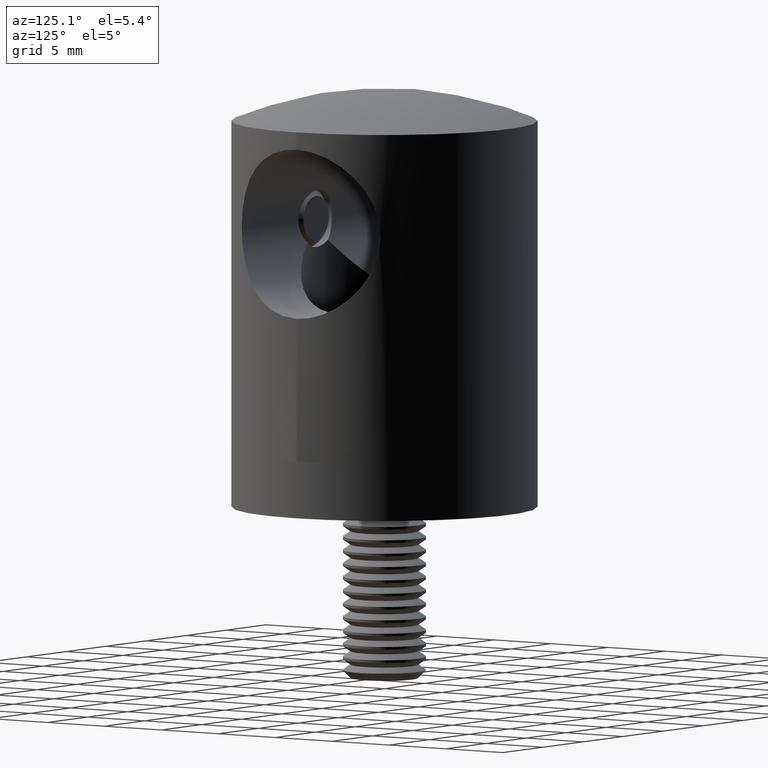
[diagram: clean part render]
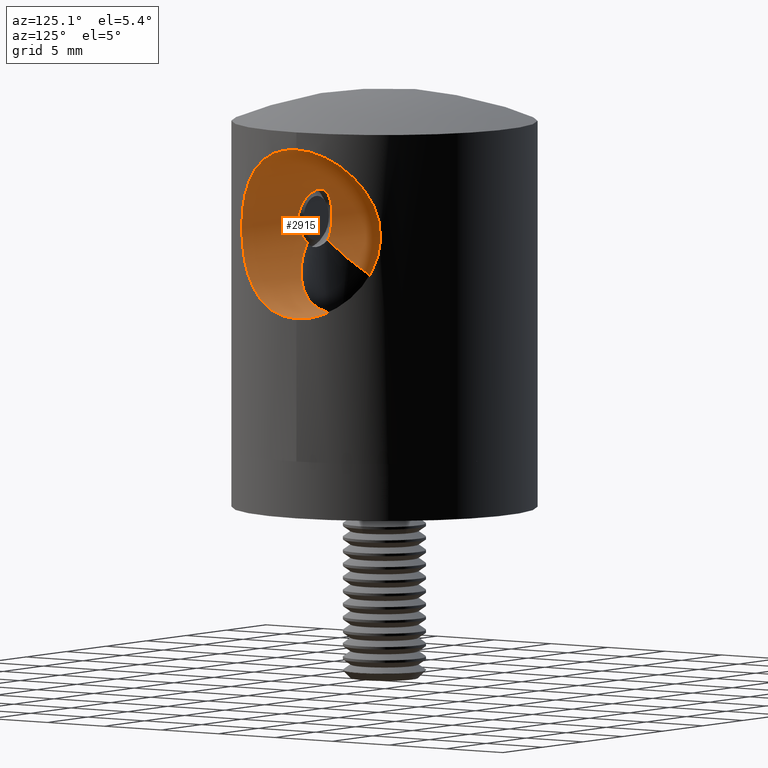
[diagram: same view with one face highlighted and labeled with its STEP entity id]
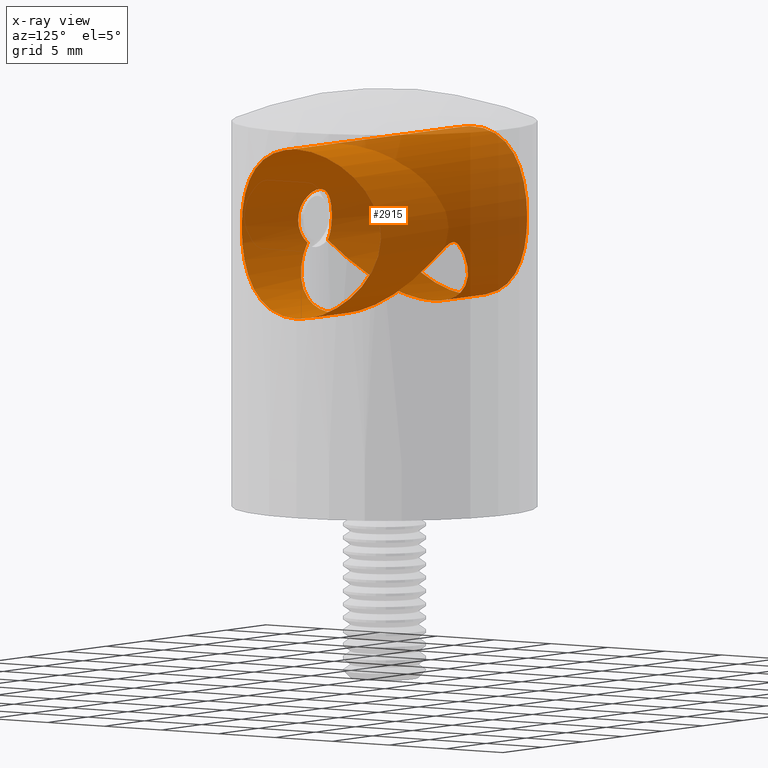
[diagram: x-ray of the same camera — body ghosted, the highlighted face saturated]
A machine part, auxiliary view. The second image highlights one B-rep face of the part: STEP entity #2915.
The next image is the same camera in x-ray: the body ghosted, the highlighted face saturated — about 39% of this face is hidden behind the body in this view.
In plain terms, the highlighted cylindrical surface (bore or boss wall) has radius 6.1 mm, axis along (1, 0, 0).
Its self-contained STEP definition (entity closure, byte-faithful):
#45 = CARTESIAN_POINT ( 'NONE',  ( 9.648512081601326800, 5.288360497444990900, 13.33447340568118200 ) ) ;
#120 = CARTESIAN_POINT ( 'NONE',  ( 9.882311817479491700, -4.833099761158375300, 12.67314814702374700 ) ) ;
#193 = CARTESIAN_POINT ( 'NONE',  ( 9.541437754094053100, -5.476577152540515100, 19.11591475201605700 ) ) ;
#271 = FACE_OUTER_BOUND ( 'NONE', #16092, .T. ) ;
#419 = CARTESIAN_POINT ( 'NONE',  ( 11.00000000000000000, -3.252606517456513300E-016, 10.29999999999999700 ) ) ;
#593 = CARTESIAN_POINT ( 'NONE',  ( -1.974343393290134400, 5.668232699227719900, 14.14100178713926900 ) ) ;
#801 = CARTESIAN_POINT ( 'NONE',  ( -1.332703421794332800, 5.852720188143624800, 14.67597872737485600 ) ) ;
#873 = CARTESIAN_POINT ( 'NONE',  ( -0.9904083631493659800, 5.920263785117187500, 14.92451375343655900 ) ) ;
#964 = CARTESIAN_POINT ( 'NONE',  ( 2.025586993270402900, -6.074695222667565500, 16.96475893698508800 ) ) ;
#999 = CARTESIAN_POINT ( 'NONE',  ( -9.404246883826671100, 5.706848822141821200, 18.56371187619917200 ) ) ;
#1094 = CARTESIAN_POINT ( 'NONE',  ( 5.605361300588310900, -2.179277337316793100, 10.68777264113116800 ) ) ;
#1148 = CARTESIAN_POINT ( 'NONE',  ( -10.56075521959791700, 3.096678220883588600, 21.67043277127627500 ) ) ;
#1170 = CARTESIAN_POINT ( 'NONE',  ( 4.796370260078870000, 3.622636291200091600, 11.47941165405563300 ) ) ;
#1222 = CARTESIAN_POINT ( 'NONE',  ( -9.882311817479486400, 4.833099761158372600, 12.67314814702374400 ) ) ;
#1247 = CARTESIAN_POINT ( 'NONE',  ( 5.385464049383036100, 2.652474965956620200, 10.90336773577465100 ) ) ;
#1266 = CARTESIAN_POINT ( 'NONE',  ( -2.101105937947259900, -6.100380710190158600, 16.31358517797544400 ) ) ;
#1316 = CARTESIAN_POINT ( 'NONE',  ( 10.97695157601235900, -0.8154917404544900200, 10.34128971045530300 ) ) ;
#1391 = CARTESIAN_POINT ( 'NONE',  ( 10.99999999999999800, -0.4119544153468471200, 10.29999999999999500 ) ) ;
#1442 = CARTESIAN_POINT ( 'NONE',  ( -9.154733802318572700, -6.098430320488778200, 16.82884321834455600 ) ) ;
#1591 = CARTESIAN_POINT ( 'NONE',  ( -10.56848592839725500, -3.070138311554853100, 21.68581601544170900 ) ) ;
#1614 = CARTESIAN_POINT ( 'NONE',  ( 10.22984273932647900, -4.054541376369454200, 20.97407856064159400 ) ) ;
#1689 = CARTESIAN_POINT ( 'NONE',  ( 9.205781148332759400, -6.021279925512389200, 17.39743835238008900 ) ) ;
#1767 = CARTESIAN_POINT ( 'NONE',  ( 9.875328383823170200, 4.851642139667733400, 12.68169681171467100 ) ) ;
#1844 = CARTESIAN_POINT ( 'NONE',  ( 9.362046769079290300, -5.775541901457285300, 18.37322836746236700 ) ) ;
#1915 = CARTESIAN_POINT ( 'NONE',  ( 9.655843362379474800, 5.275096090437347000, 19.48856493924066800 ) ) ;
#2284 = CARTESIAN_POINT ( 'NONE',  ( 10.34725143670187500, 3.748763762359424300, 11.57160730895325100 ) ) ;
#2307 = CARTESIAN_POINT ( 'NONE',  ( -5.058933925122087100, -3.248349520662636300, 11.22299575467066600 ) ) ;
#2452 = CARTESIAN_POINT ( 'NONE',  ( -4.389148418959240200, -4.106772419858628200, 11.87542505124078000 ) ) ;
#2527 = CARTESIAN_POINT ( 'NONE',  ( 1.488808073474398000, 5.822726451356348100, 14.56400330598997400 ) ) ;
#2545 = CARTESIAN_POINT ( 'NONE',  ( 2.098796381142570500, -6.099585656866871400, 16.53088729750295400 ) ) ;
#2601 = CARTESIAN_POINT ( 'NONE',  ( 6.002171018118881200, -0.1365986633456808300, 10.29786457832679500 ) ) ;
#2684 = EDGE_LOOP ( 'NONE', ( #4123 ) ) ;
#2728 = CARTESIAN_POINT ( 'NONE',  ( -9.647514933004703900, 5.290201444760914900, 19.46247388205959400 ) ) ;
#2800 = CARTESIAN_POINT ( 'NONE',  ( -11.00000000000000000, -4.065758146820641600E-016, 10.29999999999999900 ) ) ;
#2910 = CARTESIAN_POINT ( 'NONE',  ( -1.612631634144330300, -5.940142666188634700, 14.98607845750716500 ) ) ;
#2915 = ADVANCED_FACE ( 'NONE', ( #7843, #271, #18363 ), #11340, .F. ) ;
#2986 = CARTESIAN_POINT ( 'NONE',  ( -2.093736081883821800, -6.097828132484486300, 16.20432126434827000 ) ) ;
#3058 = CARTESIAN_POINT ( 'NONE',  ( -2.061975679411623300, -6.086996045277346400, 15.98735336462846100 ) ) ;
#3089 = CARTESIAN_POINT ( 'NONE',  ( -9.996537732736378200, -4.599883052709786000, 12.37464005127819400 ) ) ;
#3100 = AXIS2_PLACEMENT_3D ( 'NONE', #11255, #18071, #9223 ) ;
#3164 = CARTESIAN_POINT ( 'NONE',  ( -9.648512081601317900, -5.288360497444989200, 13.33447340568118400 ) ) ;
#3317 = CARTESIAN_POINT ( 'NONE',  ( -10.88660539605092800, -1.587461163400290900, 22.29327081037906300 ) ) ;
#3345 = CARTESIAN_POINT ( 'NONE',  ( 10.90835395832875700, -1.431035666601241800, 22.33324243480163700 ) ) ;
#3391 = CARTESIAN_POINT ( 'NONE',  ( -10.88034175087272000, 1.629824696895270100, 22.28170272155429300 ) ) ;
#3419 = CARTESIAN_POINT ( 'NONE',  ( 9.994595874194324400, -4.596398108278324700, 20.41514637220333500 ) ) ;
#3491 = CARTESIAN_POINT ( 'NONE',  ( 9.823416292433384100, -4.951332716768896500, 12.83170122485886600 ) ) ;
#3568 = CARTESIAN_POINT ( 'NONE',  ( 10.81560744150687200, -2.015142880694794400, 22.16107234963544000 ) ) ;
#3646 = CARTESIAN_POINT ( 'NONE',  ( 10.65712405073123900, -2.750588877777293100, 21.85910216543438600 ) ) ;
#3652 = CARTESIAN_POINT ( 'NONE',  ( 11.00000000000000000, 0.0000000000000000000, 10.29999999999999900 ) ) ;
#3804 = CARTESIAN_POINT ( 'NONE',  ( 11.00000000000000000, 0.4119544153468421300, 10.30000000000000100 ) ) ;
#3978 = CARTESIAN_POINT ( 'NONE',  ( 3.553350730415342900, 4.846567782642080300, 12.68099178015578100 ) ) ;
#4115 = CARTESIAN_POINT ( 'NONE',  ( -5.941325751448900400, 0.8632317753215782400, 10.35770454943839500 ) ) ;
#4123 = ORIENTED_EDGE ( 'NONE', *, *, #21187, .F. ) ;
#4190 = CARTESIAN_POINT ( 'NONE',  ( -4.097552072176873700, 4.396346292867046500, 12.15799220229235900 ) ) ;
#4207 = CARTESIAN_POINT ( 'NONE',  ( 1.841419818001115900, -6.014671674399156000, 15.36712081795136300 ) ) ;
#4264 = CARTESIAN_POINT ( 'NONE',  ( -0.2229703841922922900, 5.999711123325627500, 15.29842435081656600 ) ) ;
#4282 = CARTESIAN_POINT ( 'NONE',  ( 2.093510338979991400, -6.097750379977491700, 16.20196553109769900 ) ) ;
#4335 = CARTESIAN_POINT ( 'NONE',  ( 5.933619609980066700, -0.9863462721743108100, 10.36528464065996500 ) ) ;
#4353 = CARTESIAN_POINT ( 'NONE',  ( 2.036667523308055600, -6.078409108426343200, 15.87655080622310200 ) ) ;
#4489 = CARTESIAN_POINT ( 'NONE',  ( 5.898167603611800500, 1.120429336238712500, 10.40014097301561200 ) ) ;
#4537 = CARTESIAN_POINT ( 'NONE',  ( -10.05928916644563000, 4.453430819430038500, 12.22689457929945800 ) ) ;
#4575 = CARTESIAN_POINT ( 'NONE',  ( -2.037224136285150000, -6.078595965595432000, 15.87869585989432300 ) ) ;
#4610 = CARTESIAN_POINT ( 'NONE',  ( -10.23523940358924200, 4.040947010502997600, 11.81391594917569400 ) ) ;
#4749 = CARTESIAN_POINT ( 'NONE',  ( -10.35109153156164300, 3.738197719850750100, 11.56340833636307500 ) ) ;
#4787 = CARTESIAN_POINT ( 'NONE',  ( -1.560745191584887800, -5.934707486735849400, 17.82154701282365000 ) ) ;
#4845 = CARTESIAN_POINT ( 'NONE',  ( 10.88928147642777600, -1.606873239554576800, 10.50161415780659300 ) ) ;
#4892 = CARTESIAN_POINT ( 'NONE',  ( -9.357734529854720800, -5.784913307303538600, 14.42355532554420000 ) ) ;
#5048 = CARTESIAN_POINT ( 'NONE',  ( -9.262708643723197400, -5.933349042232531900, 17.83071913368764400 ) ) ;
#5073 = CARTESIAN_POINT ( 'NONE',  ( 10.23865757073148200, 4.032357685516512200, 20.99370868653107500 ) ) ;
#5126 = CARTESIAN_POINT ( 'NONE',  ( -11.00000000000000000, -4.065758146820641600E-016, 10.29999999999999900 ) ) ;
#5155 = CARTESIAN_POINT ( 'NONE',  ( 10.00013541345771500, -4.584346395257771400, 12.37109864061816600 ) ) ;
#5228 = CARTESIAN_POINT ( 'NONE',  ( 9.364778303763213100, -5.773464504138153200, 14.39169695136982900 ) ) ;
#5306 = CARTESIAN_POINT ( 'NONE',  ( 9.262708643723195600, 5.933349042232532800, 17.83071913368764400 ) ) ;
#5379 = CARTESIAN_POINT ( 'NONE',  ( 9.411849063529519600, 5.694304542915046100, 18.59632450029122500 ) ) ;
#5685 = CARTESIAN_POINT ( 'NONE',  ( 10.88669551587767400, 1.625843207734908100, 10.50636876088165500 ) ) ;
#5712 = CARTESIAN_POINT ( 'NONE',  ( 0.7984645737163839100, 5.949732835224148500, 15.05108044348809700 ) ) ;
#5761 = CARTESIAN_POINT ( 'NONE',  ( 9.996537732736381800, 4.599883052709784300, 12.37464005127819500 ) ) ;
#5788 = CARTESIAN_POINT ( 'NONE',  ( -5.907493718958915200, 1.070115368251027600, 10.39097219733359800 ) ) ;
#5867 = CARTESIAN_POINT ( 'NONE',  ( -1.596766314802774200, -5.793581575468227400, 14.47328231479936100 ) ) ;
#5937 = CARTESIAN_POINT ( 'NONE',  ( -1.817385701289969900, 5.720573112531241100, 14.27749625758165000 ) ) ;
#6016 = CARTESIAN_POINT ( 'NONE',  ( -3.630156631122732200, -4.789113362133579500, 12.60748802911717600 ) ) ;
#6085 = CARTESIAN_POINT ( 'NONE',  ( 4.861354902096104000, -3.521632493673705800, 11.41579888962308900 ) ) ;
#6159 = CARTESIAN_POINT ( 'NONE',  ( 3.641122164734124800, -4.781310034785559700, 12.59701020878115300 ) ) ;
#6178 = CARTESIAN_POINT ( 'NONE',  ( 1.754409539363008100, -5.989502981140246300, 17.55922130206730400 ) ) ;
#6238 = CARTESIAN_POINT ( 'NONE',  ( 5.933879885055172400, 0.9127216642812178100, 10.36502605593457100 ) ) ;
#6300 = EDGE_LOOP ( 'NONE', ( #8797, #14322 ) ) ;
#6326 = CARTESIAN_POINT ( 'NONE',  ( -2.051653251407408600, -6.083500675143978900, 16.86123247293654600 ) ) ;
#6359 = CARTESIAN_POINT ( 'NONE',  ( -9.288523322039354800, 5.893058497745284900, 17.98819897613592600 ) ) ;
#6431 = CARTESIAN_POINT ( 'NONE',  ( -10.97695157601235700, 0.8154917404544902400, 10.34128971045530000 ) ) ;
#6500 = CARTESIAN_POINT ( 'NONE',  ( -10.00013541345771500, 4.584346395257770500, 12.37109864061816600 ) ) ;
#6541 = CARTESIAN_POINT ( 'NONE',  ( -0.8545190373027407000, -5.786855726936490600, 18.33063683222330600 ) ) ;
#6550 = VERTEX_POINT ( 'NONE', #17566 ) ;
#6573 = CARTESIAN_POINT ( 'NONE',  ( -10.99905965626380700, 0.4319682143558776800, 22.49830428873474400 ) ) ;
#6617 = CARTESIAN_POINT ( 'NONE',  ( -2.098627926073695500, -6.099527671785688600, 16.53369559396774200 ) ) ;
#6649 = CARTESIAN_POINT ( 'NONE',  ( -10.65712405073123900, 2.750588877777294900, 21.85910216543440000 ) ) ;
#6797 = CARTESIAN_POINT ( 'NONE',  ( -9.369915670549833200, -5.762779879413706400, 18.41008764505288700 ) ) ;
#6824 = CARTESIAN_POINT ( 'NONE',  ( 10.88034175087272500, -1.629824696895275900, 22.28170272155429300 ) ) ;
#6873 = CARTESIAN_POINT ( 'NONE',  ( -9.182846360408930800, -6.056809541581206000, 17.23151101186772000 ) ) ;
#6905 = CARTESIAN_POINT ( 'NONE',  ( 9.295422111209905600, 5.882183215968437300, 18.02788356252803900 ) ) ;
#6979 = CARTESIAN_POINT ( 'NONE',  ( 10.56075521959791500, -3.096678220883586800, 21.67043277127626800 ) ) ;
#7055 = CARTESIAN_POINT ( 'NONE',  ( 9.548936329887283100, 5.463500988949929700, 19.14152131049772300 ) ) ;
#7133 = CARTESIAN_POINT ( 'NONE',  ( 10.77884143829793800, -2.202631448935040000, 22.09190641235104000 ) ) ;
#7284 = CARTESIAN_POINT ( 'NONE',  ( 10.23201466657478100, 4.049143934664146900, 11.82103939613443400 ) ) ;
#7466 = CARTESIAN_POINT ( 'NONE',  ( 4.077951799122588200, 4.414275683407217900, 12.17691918122648100 ) ) ;
#7617 = CARTESIAN_POINT ( 'NONE',  ( -3.569507124002474700, 4.834915987140045800, 12.66555515773551500 ) ) ;
#7695 = CARTESIAN_POINT ( 'NONE',  ( -0.8138401773423792300, 5.947639583694001300, 15.04176105867922800 ) ) ;
#7785 = CARTESIAN_POINT ( 'NONE',  ( 2.088860761884516300, -6.096149780478172400, 16.64231454198938600 ) ) ;
#7839 = CARTESIAN_POINT ( 'NONE',  ( 4.164476997352461600, -4.333108307644922200, 12.09328090130381900 ) ) ;
#7843 = FACE_BOUND ( 'NONE', #6300, .T. ) ;
#7965 = CARTESIAN_POINT ( 'NONE',  ( -9.547459403721239500, 5.466075739822138700, 13.66354435040355300 ) ) ;
#7987 = CARTESIAN_POINT ( 'NONE',  ( 5.993465899922820300, -0.3514920590932021900, 10.30642794072177400 ) ) ;
#8039 = CARTESIAN_POINT ( 'NONE',  ( -10.99999999999999800, 0.4119544153468474600, 10.29999999999999700 ) ) ;
#8058 = CARTESIAN_POINT ( 'NONE',  ( 1.264911064067350700, -5.865151319446074000, 14.72369453857598600 ) ) ;
#8078 = CARTESIAN_POINT ( 'NONE',  ( -0.4395679350782009100, -5.740271456021377000, 18.46502818225347700 ) ) ;
#8130 = CARTESIAN_POINT ( 'NONE',  ( 5.070355812523002800, -3.213434119294578600, 11.21174429214072000 ) ) ;
#8254 = CARTESIAN_POINT ( 'NONE',  ( -9.364778303763213100, 5.773464504138154000, 14.39169695136983200 ) ) ;
#8298 = CARTESIAN_POINT ( 'NONE',  ( -1.753379723450522400, -5.989202559992711400, 17.56074971939405000 ) ) ;
#8326 = CARTESIAN_POINT ( 'NONE',  ( -10.23865757073147800, -4.032357685516514000, 20.99370868653107500 ) ) ;
#8350 = CARTESIAN_POINT ( 'NONE',  ( 10.56516037208888100, -3.081656113116340900, 11.12078256614181400 ) ) ;
#8396 = CARTESIAN_POINT ( 'NONE',  ( -9.295422111209902000, -5.882183215968435500, 18.02788356252802900 ) ) ;
#8472 = CARTESIAN_POINT ( 'NONE',  ( -10.91341900764949100, -1.391812421171590800, 22.34254261676389700 ) ) ;
#8571 = CARTESIAN_POINT ( 'NONE',  ( 10.99905965626380100, -0.4319682143558784500, 22.49830428873475100 ) ) ;
#8591 = B_SPLINE_CURVE_WITH_KNOTS ( 'NONE', 3,
 ( #12928, #11319, #19776, #4207, #16325, #4353, #18132, #4282, #11178, #2545, #7785, #12998, #964, #14813, #16467, #16544, #6178, #18277, #15180, #11471, #22080, #16912, #13441, #13510, #8078, #6541, #18634, #13368, #4787, #8298, #10030, #20214, #21934, #20368, #6326, #11616, #6617, #1266, #2986, #3058, #4575, #15253, #2910, #11765 ),
 .UNSPECIFIED., .F., .F.,
 ( 4, 2, 2, 2, 2, 2, 2, 2, 2, 2, 2, 2, 2, 2, 2, 2, 2, 2, 2, 2, 2, 4 ),
 ( 0.001359203220729817300, 0.002016167456919639400, 0.002673131693109461300, 0.003001613811204376900, 0.003330095929299292800, 0.003658578047394208400, 0.003987060165489123900, 0.004315542283584039400, 0.004644024401678955800, 0.005300988637868778200, 0.005957952874058601400, 0.006614917110248424600, 0.007271881346438247900, 0.007928845582628071100, 0.008585809818817895200, 0.008914291936912802100, 0.009242774055007710700, 0.009571256173102617500, 0.009899738291197524400, 0.01022822040929243300, 0.01055670252738734000, 0.01187063099976695200 ),
 .UNSPECIFIED. ) ;
#8643 = CARTESIAN_POINT ( 'NONE',  ( 9.357734529854720800, 5.784913307303538600, 14.42355532554420200 ) ) ;
#8723 = CARTESIAN_POINT ( 'NONE',  ( 9.152699255644691300, 6.101483401673093000, 16.01703893293871100 ) ) ;
#8797 = ORIENTED_EDGE ( 'NONE', *, *, #9080, .T. ) ;
#8798 = CARTESIAN_POINT ( 'NONE',  ( 9.159751136064910400, -6.090938158330283500, 16.79016624204473700 ) ) ;
#8869 = CARTESIAN_POINT ( 'NONE',  ( 9.257007648696458100, -5.942224152987878800, 17.79307836241349600 ) ) ;
#9080 = EDGE_CURVE ( 'NONE', #6550, #11839, #20345, .T. ) ;
#9194 = CARTESIAN_POINT ( 'NONE',  ( -5.946055537342354000, -0.8300710709480136900, 10.35305359656856400 ) ) ;
#9223 = DIRECTION ( 'NONE',  ( 0.0000000000000000000, 0.0000000000000000000, -1.000000000000000000 ) ) ;
#9277 = CARTESIAN_POINT ( 'NONE',  ( -4.813579456712679900, 3.599789657321296900, 11.46263072592644700 ) ) ;
#9352 = CARTESIAN_POINT ( 'NONE',  ( -1.264911064067350700, -5.865151319446073200, 14.72369453857598400 ) ) ;
#9427 = CARTESIAN_POINT ( 'NONE',  ( -6.000536527366700800, -0.2001739052171296900, 10.29947226822210400 ) ) ;
#9501 = CARTESIAN_POINT ( 'NONE',  ( -2.800319949547912300, -5.316494211003008500, 13.39285986529588800 ) ) ;
#9622 = CARTESIAN_POINT ( 'NONE',  ( -9.186070511604013300, 6.051171545997140900, 17.19691923427018000 ) ) ;
#9692 = CARTESIAN_POINT ( 'NONE',  ( -9.287385638928908400, 5.895229317790464700, 14.78182133336428600 ) ) ;
#9715 = CARTESIAN_POINT ( 'NONE',  ( 5.547929425930242100, 2.293321947987471400, 10.74409475538808500 ) ) ;
#9767 = CARTESIAN_POINT ( 'NONE',  ( -9.159751136064912200, 6.090938158330279100, 16.79016624204474800 ) ) ;
#9789 = CARTESIAN_POINT ( 'NONE',  ( 2.807320842822787800, -5.312840968243786900, 13.38633653989425600 ) ) ;
#9862 = CARTESIAN_POINT ( 'NONE',  ( 5.996895272633159000, 0.2862921840430671100, 10.30305382305022400 ) ) ;
#10030 = CARTESIAN_POINT ( 'NONE',  ( -1.810806009050234700, -6.006389234583454400, 17.46905416753431000 ) ) ;
#10054 = ORIENTED_EDGE ( 'NONE', *, *, #20887, .F. ) ;
#10063 = CARTESIAN_POINT ( 'NONE',  ( -11.00042874672051100, -0.1790107633385605900, 22.50077315433565400 ) ) ;
#10145 = CARTESIAN_POINT ( 'NONE',  ( -10.55980625606059700, -3.085983629272201200, 11.13443178477246500 ) ) ;
#10223 = CARTESIAN_POINT ( 'NONE',  ( -9.655843362379471300, -5.275096090437347800, 19.48856493924067100 ) ) ;
#10324 = CARTESIAN_POINT ( 'NONE',  ( 10.91341900764949600, 1.391812421171593000, 22.34254261676390000 ) ) ;
#10378 = EDGE_CURVE ( 'NONE', #11839, #6550, #8591, .T. ) ;
#10399 = CARTESIAN_POINT ( 'NONE',  ( 9.542046598227907200, 5.475560630793905800, 13.68158294172838300 ) ) ;
#10467 = CARTESIAN_POINT ( 'NONE',  ( 10.97324043956128000, 0.7936138331961980500, 22.45163438274044800 ) ) ;
#10536 = CARTESIAN_POINT ( 'NONE',  ( 9.547459403721244800, -5.466075739822142200, 13.66354435040356000 ) ) ;
#10694 = CARTESIAN_POINT ( 'NONE',  ( 10.55980625606059000, 3.085983629272201600, 11.13443178477246100 ) ) ;
#10776 = CARTESIAN_POINT ( 'NONE',  ( -10.99999999999999800, 0.0000000000000000000, 10.29999999999999900 ) ) ;
#10940 = CARTESIAN_POINT ( 'NONE',  ( 4.330611818442055700, 4.168268543179412000, 11.93220180396378200 ) ) ;
#11016 = CARTESIAN_POINT ( 'NONE',  ( -3.361448588209259700, -4.980719416338415900, 12.86440435271702800 ) ) ;
#11084 = CARTESIAN_POINT ( 'NONE',  ( -5.763405681466280400, 1.680748575675977700, 10.53257308362807300 ) ) ;
#11159 = CARTESIAN_POINT ( 'NONE',  ( 0.4164247023968396000, 5.988610602907670900, 15.23576298494401200 ) ) ;
#11178 = CARTESIAN_POINT ( 'NONE',  ( 2.100993732706290600, -6.100342088836493200, 16.31110079149023000 ) ) ;
#11230 = CARTESIAN_POINT ( 'NONE',  ( -5.827112224364638500, -1.444885380224743700, 10.46997685911353300 ) ) ;
#11255 = CARTESIAN_POINT ( 'NONE',  ( -11.00000000000000000, 0.0000000000000000000, 16.39999999999999900 ) ) ;
#11319 = CARTESIAN_POINT ( 'NONE',  ( 1.439601833364684900, -5.902826099658821800, 14.85551316707757700 ) ) ;
#11340 = CYLINDRICAL_SURFACE ( 'NONE', #3100, 6.099999999999999600 ) ;
#11354 = CARTESIAN_POINT ( 'NONE',  ( -9.205781148332759400, 6.021279925512387400, 17.39743835238009200 ) ) ;
#11450 = CARTESIAN_POINT ( 'NONE',  ( 4.751897198670479700, -3.667659259264588900, 11.52251748310811200 ) ) ;
#11471 = CARTESIAN_POINT ( 'NONE',  ( 1.054332110265832300, -5.820845952516644500, 18.22897082291987300 ) ) ;
#11504 = CARTESIAN_POINT ( 'NONE',  ( -10.05375444080991800, 4.465900659990700700, 20.55976037867541000 ) ) ;
#11528 = CARTESIAN_POINT ( 'NONE',  ( 5.448222991157091000, -2.542767010236418800, 10.84196997935652700 ) ) ;
#11600 = CARTESIAN_POINT ( 'NONE',  ( 5.805834339480322900, 1.528407864514953900, 10.49088503742910900 ) ) ;
#11616 = CARTESIAN_POINT ( 'NONE',  ( -2.088524507727443200, -6.096034286308173100, 16.64511596994808300 ) ) ;
#11651 = CARTESIAN_POINT ( 'NONE',  ( 1.264911064067350700, -5.865151319446074000, 14.72369453857598600 ) ) ;
#11653 = CARTESIAN_POINT ( 'NONE',  ( -10.56516037208888300, 3.081656113116340500, 11.12078256614181100 ) ) ;
#11765 = CARTESIAN_POINT ( 'NONE',  ( -1.264911064067350700, -5.865151319446073200, 14.72369453857598400 ) ) ;
#11798 = CARTESIAN_POINT ( 'NONE',  ( -9.411849063529519600, -5.694304542915048700, 18.59632450029122100 ) ) ;
#11839 = VERTEX_POINT ( 'NONE', #11651 ) ;
#11866 = CARTESIAN_POINT ( 'NONE',  ( -10.00363043224887400, -4.584473309947978400, 20.44285449540665000 ) ) ;
#11943 = CARTESIAN_POINT ( 'NONE',  ( -10.70011745089923100, -2.557856534737484600, 10.85862283480468400 ) ) ;
#11970 = CARTESIAN_POINT ( 'NONE',  ( 9.653232611197095600, -5.279764526992450700, 13.31975750584613700 ) ) ;
#12018 = CARTESIAN_POINT ( 'NONE',  ( -9.884558394909735300, -4.832955114603747000, 20.14278198770373500 ) ) ;
#12048 = CARTESIAN_POINT ( 'NONE',  ( 9.182846360408934300, 6.056809541581205100, 17.23151101186772000 ) ) ;
#12118 = CARTESIAN_POINT ( 'NONE',  ( 9.182824149353347600, -6.056814456260993600, 15.57100690659151700 ) ) ;
#12201 = CARTESIAN_POINT ( 'NONE',  ( 10.56848592839725500, 3.070138311554854400, 21.68581601544172000 ) ) ;
#12276 = CARTESIAN_POINT ( 'NONE',  ( 10.88660539605092300, 1.587461163400291300, 22.29327081037905200 ) ) ;
#12465 = B_SPLINE_CURVE_WITH_KNOTS ( 'NONE', 3,
 ( #2800, #8039, #6431, #16796, #15134, #20027, #11653, #4749, #4610, #4537, #6500, #1222, #20173, #18595, #7965, #8254, #9692, #16720, #16649, #20101, #9767, #9622, #11354, #21824, #6359, #21892, #999, #13106, #2728, #14842, #21756, #16574, #11504, #18457, #13324, #1148, #6649, #20401, #13776, #3391, #17247, #18813, #6573, #10063, #13698, #22107, #18665, #8472, #3317, #15508, #16943, #20542, #1591, #15430, #8326, #11866, #12018, #10223, #22040, #11798, #6797, #8396, #5048, #6873, #1442, #13542, #15285, #17010, #4892, #18963, #3164, #20321, #3089, #18740, #22261, #20470, #10145, #17088, #11943, #17168, #22180, #13470, #15208, #5126 ),
 .UNSPECIFIED., .T., .F.,
 ( 4, 2, 2, 2, 2, 2, 2, 2, 2, 2, 2, 2, 2, 2, 2, 2, 2, 2, 2, 2, 2, 2, 2, 2, 2, 2, 2, 2, 2, 2, 2, 2, 2, 2, 2, 2, 2, 2, 2, 2, 2, 4 ),
 ( 0.0000000000000000000, 0.001216736210685104500, 0.002433472421370208600, 0.003650208632055312900, 0.004866944842740417200, 0.005475312948082970200, 0.006083681053425524100, 0.007300417264110637000, 0.008517153474795749100, 0.009733889685480860400, 0.01034225779082341600, 0.01095062589616597300, 0.01155899400150852900, 0.01216736210685108600, 0.01338409831753618700, 0.01399246642287873400, 0.01460083452822128100, 0.01581757073890636600, 0.01703430694959145000, 0.01764267505493399100, 0.01825104316027653000, 0.01946777937096160600, 0.02007614747630414800, 0.02068451558164668600, 0.02129288368698922800, 0.02190125179233176300, 0.02311798800301683900, 0.02433472421370190900, 0.02555146042438697800, 0.02676819663507204800, 0.02737656474041458300, 0.02798493284575711800, 0.02920166905644219400, 0.03041840526712729200, 0.03163514147781237900, 0.03285187768849747600, 0.03406861389918256600, 0.03528535010986765700, 0.03589371821521019500, 0.03650208632055274000, 0.03771882253123783100, 0.03893555874192292100 ),
 .UNSPECIFIED. ) ;
#12507 = CARTESIAN_POINT ( 'NONE',  ( 10.82153467679176400, 2.008721309774863500, 10.62652596293656300 ) ) ;
#12683 = CARTESIAN_POINT ( 'NONE',  ( -5.999423518707703600, 0.2311398965319164700, 10.30056703071898400 ) ) ;
#12756 = CARTESIAN_POINT ( 'NONE',  ( -5.987287593646464700, 0.4437432294940630300, 10.31250500155602100 ) ) ;
#12911 = CARTESIAN_POINT ( 'NONE',  ( -5.409869706024877300, 2.623633317661039100, 10.87957111080283200 ) ) ;
#12928 = CARTESIAN_POINT ( 'NONE',  ( 1.264911064067350700, -5.865151319446074000, 14.72369453857598600 ) ) ;
#12980 = CARTESIAN_POINT ( 'NONE',  ( -5.589688092112501400, -2.217622435427866600, 10.70315258963418400 ) ) ;
#12998 = CARTESIAN_POINT ( 'NONE',  ( 2.052201600842742800, -6.083685911845287300, 16.85882917224035900 ) ) ;
#13056 = CARTESIAN_POINT ( 'NONE',  ( 4.410100469293023900, -4.084117966703208100, 11.85508844831131900 ) ) ;
#13106 = CARTESIAN_POINT ( 'NONE',  ( -9.541437754094056700, 5.476577152540516000, 19.11591475201606400 ) ) ;
#13201 = CARTESIAN_POINT ( 'NONE',  ( 5.850397280123098100, -1.393619994045684600, 10.44713393191579700 ) ) ;
#13324 = CARTESIAN_POINT ( 'NONE',  ( -10.34600107115468500, 3.752229823401759500, 21.22572781584416600 ) ) ;
#13351 = CARTESIAN_POINT ( 'NONE',  ( 11.00000000000000000, -3.252606517456513300E-016, 10.29999999999999700 ) ) ;
#13368 = CARTESIAN_POINT ( 'NONE',  ( -1.403573685132121200, -5.894115759291668000, 17.97694270018069700 ) ) ;
#13441 = CARTESIAN_POINT ( 'NONE',  ( 0.2203795295326191900, -5.727184751572131000, 18.49984638675085700 ) ) ;
#13470 = CARTESIAN_POINT ( 'NONE',  ( -10.97668327814536400, -0.8221493798894822200, 10.34175555824984000 ) ) ;
#13510 = CARTESIAN_POINT ( 'NONE',  ( -0.2174421764079095300, -5.727072475679378300, 18.50015258610098100 ) ) ;
#13542 = CARTESIAN_POINT ( 'NONE',  ( -9.152699255644689600, -6.101483401673090300, 16.01703893293871100 ) ) ;
#13698 = CARTESIAN_POINT ( 'NONE',  ( -10.99515712557069400, -0.3851602843953686500, 22.49128501828072800 ) ) ;
#13729 = CARTESIAN_POINT ( 'NONE',  ( 10.34600107115468700, -3.752229823401762600, 21.22572781584417700 ) ) ;
#13776 = CARTESIAN_POINT ( 'NONE',  ( -10.81560744150687700, 2.015142880694789500, 22.16107234963545000 ) ) ;
#13799 = CARTESIAN_POINT ( 'NONE',  ( 9.404246883826667500, -5.706848822141821200, 18.56371187619916800 ) ) ;
#13871 = CARTESIAN_POINT ( 'NONE',  ( 11.00042874672050700, 0.1790107633385608100, 22.50077315433566100 ) ) ;
#13948 = CARTESIAN_POINT ( 'NONE',  ( 9.876850331807260000, -4.844238823729229500, 20.11236126726327800 ) ) ;
#14019 = CARTESIAN_POINT ( 'NONE',  ( 10.99515712557069600, 0.3851602843953721400, 22.49128501828072000 ) ) ;
#14141 = B_SPLINE_CURVE_WITH_KNOTS ( 'NONE', 3,
 ( #13351, #1391, #1316, #4845, #16967, #18692, #8350, #20426, #17195, #22287, #5155, #120, #3491, #11970, #10536, #5228, #15533, #12118, #20870, #20952, #8798, #20725, #1689, #8869, #15611, #1844, #13799, #193, #15756, #22355, #13948, #3419, #17349, #1614, #13729, #6979, #3646, #7133, #3568, #6824, #3345, #17420, #8571, #13871, #14019, #10467, #15459, #10324, #12276, #20793, #19206, #17272, #12201, #19066, #5073, #15679, #18911, #1915, #7055, #5379, #20650, #6905, #5306, #12048, #18992, #8723, #19131, #17499, #8643, #10399, #45, #1767, #5761, #7284, #2284, #17646, #10694, #15834, #21177, #12507, #5685, #15977, #3804, #419 ),
 .UNSPECIFIED., .T., .F.,
 ( 4, 2, 2, 2, 2, 2, 2, 2, 2, 2, 2, 2, 2, 2, 2, 2, 2, 2, 2, 2, 2, 2, 2, 2, 2, 2, 2, 2, 2, 2, 2, 2, 2, 2, 2, 2, 2, 2, 2, 2, 2, 4 ),
 ( 0.0000000000000000000, 0.001216736210685103400, 0.002433472421370206800, 0.003650208632055310300, 0.004866944842740413700, 0.005475312948082967600, 0.006083681053425521500, 0.007300417264110631800, 0.008517153474795743900, 0.009733889685480853400, 0.01034225779082340900, 0.01095062589616596600, 0.01155899400150852000, 0.01216736210685107800, 0.01338409831753618000, 0.01399246642287872400, 0.01460083452822126900, 0.01581757073890635600, 0.01703430694959143900, 0.01764267505493398100, 0.01825104316027652300, 0.01946777937096160300, 0.02007614747630414400, 0.02068451558164668600, 0.02129288368698922100, 0.02190125179233175900, 0.02311798800301683900, 0.02433472421370191600, 0.02555146042438699600, 0.02676819663507206900, 0.02737656474041461100, 0.02798493284575714900, 0.02920166905644223600, 0.03041840526712732300, 0.03163514147781240600, 0.03285187768849749000, 0.03406861389918258000, 0.03528535010986766400, 0.03589371821521020900, 0.03650208632055274700, 0.03771882253123783800, 0.03893555874192292800 ),
 .UNSPECIFIED. ) ;
#14322 = ORIENTED_EDGE ( 'NONE', *, *, #10378, .T. ) ;
#14353 = CARTESIAN_POINT ( 'NONE',  ( 2.411922243852668000, 5.503524362304248500, 13.75284396350251400 ) ) ;
#14508 = CARTESIAN_POINT ( 'NONE',  ( -4.349707622789691400, 4.148382378625306900, 11.91368474511275900 ) ) ;
#14578 = CARTESIAN_POINT ( 'NONE',  ( -2.727811131185996300, 5.354134445416146800, 13.46036226895771100 ) ) ;
#14654 = CARTESIAN_POINT ( 'NONE',  ( -0.4324952049777459100, 5.987461928851964800, 15.22973110363804000 ) ) ;
#14728 = CARTESIAN_POINT ( 'NONE',  ( 5.621077130031295600, 2.108131344790408000, 10.67231651392111200 ) ) ;
#14797 = CARTESIAN_POINT ( 'NONE',  ( 1.599738756847426400, -5.792940522130503900, 14.47103936152139300 ) ) ;
#14813 = CARTESIAN_POINT ( 'NONE',  ( 1.955982677049211200, -6.051841671252686800, 17.17206676608577700 ) ) ;
#14842 = CARTESIAN_POINT ( 'NONE',  ( -9.818003290387908400, 4.962056561256334300, 19.95341231550813500 ) ) ;
#14867 = CARTESIAN_POINT ( 'NONE',  ( 1.913646664022783600, -5.695917087882373100, 14.19681547464132100 ) ) ;
#15134 = CARTESIAN_POINT ( 'NONE',  ( -10.82349510489187400, 1.998464203924864100, 10.62285073282916600 ) ) ;
#15180 = CARTESIAN_POINT ( 'NONE',  ( 1.404888031916984700, -5.894433118325744100, 17.97576650795928500 ) ) ;
#15208 = CARTESIAN_POINT ( 'NONE',  ( -11.00000000000000000, -0.4119544153468410200, 10.30000000000000100 ) ) ;
#15253 = CARTESIAN_POINT ( 'NONE',  ( -1.873666351667014000, -6.024564158610444600, 15.35500363163642100 ) ) ;
#15285 = CARTESIAN_POINT ( 'NONE',  ( -9.179891148193682700, -6.061232615172923700, 15.60271832034517000 ) ) ;
#15430 = CARTESIAN_POINT ( 'NONE',  ( -10.35569616419129300, -3.725345759223079000, 21.24638000732666800 ) ) ;
#15459 = CARTESIAN_POINT ( 'NONE',  ( 10.95673552425202500, 0.9948883876327665500, 22.42172331346568700 ) ) ;
#15508 = CARTESIAN_POINT ( 'NONE',  ( -10.82333026450579500, -1.973254160026633800, 22.17554688403684400 ) ) ;
#15533 = CARTESIAN_POINT ( 'NONE',  ( 9.287385638928912000, -5.895229317790466400, 14.78182133336428600 ) ) ;
#15611 = CARTESIAN_POINT ( 'NONE',  ( 9.288523322039353000, -5.893058497745282200, 17.98819897613592300 ) ) ;
#15679 = CARTESIAN_POINT ( 'NONE',  ( 10.00363043224886900, 4.584473309947980200, 20.44285449540664600 ) ) ;
#15756 = CARTESIAN_POINT ( 'NONE',  ( 9.647514933004712700, -5.290201444760914900, 19.46247388205958400 ) ) ;
#15834 = CARTESIAN_POINT ( 'NONE',  ( 10.65567692228154900, 2.736668129976453000, 10.94471346896226500 ) ) ;
#15977 = CARTESIAN_POINT ( 'NONE',  ( 10.97668327814536400, 0.8221493798894867800, 10.34175555824983800 ) ) ;
#16082 = CARTESIAN_POINT ( 'NONE',  ( 2.708429892200995500, 5.364043863546903000, 13.47837441290136200 ) ) ;
#16092 = EDGE_LOOP ( 'NONE', ( #10054 ) ) ;
#16160 = CARTESIAN_POINT ( 'NONE',  ( -5.428537054597947900, -2.583712931809057300, 10.86126593429962600 ) ) ;
#16229 = CARTESIAN_POINT ( 'NONE',  ( -3.295515760246567400, 5.024667660749353000, 12.92711351346192900 ) ) ;
#16304 = CARTESIAN_POINT ( 'NONE',  ( -2.434350739322355600, 5.493770248822911200, 13.73237411049495500 ) ) ;
#16325 = CARTESIAN_POINT ( 'NONE',  ( 1.938328334360958700, -6.045931482195009600, 15.56277965620396000 ) ) ;
#16380 = CARTESIAN_POINT ( 'NONE',  ( 0.9773194002105434200, 5.922416735734996600, 14.93329048369447600 ) ) ;
#16451 = CARTESIAN_POINT ( 'NONE',  ( 5.009953077376302100, 3.323587466433379300, 11.27086011848898100 ) ) ;
#16467 = CARTESIAN_POINT ( 'NONE',  ( 1.912532000604388200, -6.037837701241852700, 17.27412501683415900 ) ) ;
#16544 = CARTESIAN_POINT ( 'NONE',  ( 1.811792167402788100, -6.006687632219919400, 17.46737169745549800 ) ) ;
#16574 = CARTESIAN_POINT ( 'NONE',  ( -9.994595874194320800, 4.596398108278324700, 20.41514637220333100 ) ) ;
#16595 = CARTESIAN_POINT ( 'NONE',  ( 5.750024841693119400, 1.725670938667254200, 10.54571646612261300 ) ) ;
#16649 = CARTESIAN_POINT ( 'NONE',  ( -9.154625459611534000, 6.098592904478553400, 15.97188860518444100 ) ) ;
#16720 = CARTESIAN_POINT ( 'NONE',  ( -9.182824149353347600, 6.056814456260995300, 15.57100690659151900 ) ) ;
#16796 = CARTESIAN_POINT ( 'NONE',  ( -10.88928147642778100, 1.606873239554576800, 10.50161415780659800 ) ) ;
#16912 = CARTESIAN_POINT ( 'NONE',  ( 0.4426080404586254500, -5.740526841056889000, 18.46432109747691900 ) ) ;
#16943 = CARTESIAN_POINT ( 'NONE',  ( -10.78664010805816500, -2.164383443384258600, 22.10666010265786600 ) ) ;
#16967 = CARTESIAN_POINT ( 'NONE',  ( 10.82349510489187100, -1.998464203924863700, 10.62285073282916200 ) ) ;
#17010 = CARTESIAN_POINT ( 'NONE',  ( -9.282739979215671500, -5.902514784919359800, 14.80798300707638200 ) ) ;
#17088 = CARTESIAN_POINT ( 'NONE',  ( -10.65567692228154900, -2.736668129976454800, 10.94471346896226500 ) ) ;
#17168 = CARTESIAN_POINT ( 'NONE',  ( -10.82153467679176400, -2.008721309774860900, 10.62652596293656000 ) ) ;
#17195 = CARTESIAN_POINT ( 'NONE',  ( 10.23523940358924000, -4.040947010502999400, 11.81391594917569400 ) ) ;
#17247 = CARTESIAN_POINT ( 'NONE',  ( -10.90835395832875500, 1.431035666601238300, 22.33324243480165100 ) ) ;
#17272 = CARTESIAN_POINT ( 'NONE',  ( 10.66475748890669100, 2.721688767266843300, 21.87398493998483300 ) ) ;
#17349 = CARTESIAN_POINT ( 'NONE',  ( 10.05375444080991800, -4.465900659990699900, 20.55976037867541700 ) ) ;
#17420 = CARTESIAN_POINT ( 'NONE',  ( 10.97560464290936000, -0.8344455402437527300, 22.45628732122498800 ) ) ;
#17499 = CARTESIAN_POINT ( 'NONE',  ( 9.282739979215673300, 5.902514784919360700, 14.80798300707637900 ) ) ;
#17566 = CARTESIAN_POINT ( 'NONE',  ( -1.264911064067350700, -5.865151319446073200, 14.72369453857598400 ) ) ;
#17646 = CARTESIAN_POINT ( 'NONE',  ( 10.50807610336932500, 3.257306727324840600, 11.23869160819104400 ) ) ;
#17822 = CARTESIAN_POINT ( 'NONE',  ( 3.279493565758556000, 5.035224027108561100, 12.94234448823002600 ) ) ;
#17898 = CARTESIAN_POINT ( 'NONE',  ( -5.989700101884644700, -0.4099842990500429700, 10.31013204877728700 ) ) ;
#17974 = CARTESIAN_POINT ( 'NONE',  ( -2.507134024453778300, -5.460674220132866600, 13.66546216704488300 ) ) ;
#18050 = CARTESIAN_POINT ( 'NONE',  ( -1.496613832176583800, 5.812744150606175000, 14.54474144335918400 ) ) ;
#18071 = DIRECTION ( 'NONE',  ( 1.000000000000000000, -0.0000000000000000000, -0.0000000000000000000 ) ) ;
#18115 = CARTESIAN_POINT ( 'NONE',  ( 1.801804584593387000, 5.732333691944835300, 14.29368427527222200 ) ) ;
#18132 = CARTESIAN_POINT ( 'NONE',  ( 2.061537772462803000, -6.086847471753372000, 15.98519257118677400 ) ) ;
#18188 = CARTESIAN_POINT ( 'NONE',  ( 2.517395769315742300, -5.456027269670411100, 13.65605029976436700 ) ) ;
#18261 = CARTESIAN_POINT ( 'NONE',  ( 5.295683430303602000, 2.827048439122371400, 10.99131489956747900 ) ) ;
#18277 = CARTESIAN_POINT ( 'NONE',  ( 1.561418587797219800, -5.934879992336702200, 17.82090092180263600 ) ) ;
#18363 = FACE_OUTER_BOUND ( 'NONE', #2684, .T. ) ;
#18401 = CARTESIAN_POINT ( 'NONE',  ( 5.983129269684197600, 0.4961405737882233500, 10.31659504282034200 ) ) ;
#18457 = CARTESIAN_POINT ( 'NONE',  ( -10.22984273932648100, 4.054541376369455100, 20.97407856064159400 ) ) ;
#18595 = CARTESIAN_POINT ( 'NONE',  ( -9.653232611197095600, 5.279764526992451600, 13.31975750584613700 ) ) ;
#18634 = CARTESIAN_POINT ( 'NONE',  ( -1.052738289646262300, -5.820553186839063600, 18.22989329272534700 ) ) ;
#18665 = CARTESIAN_POINT ( 'NONE',  ( -10.95673552425202300, -0.9948883876327715400, 22.42172331346569100 ) ) ;
#18692 = CARTESIAN_POINT ( 'NONE',  ( 10.66142031955350900, -2.734231561115276300, 10.93252429363031400 ) ) ;
#18740 = CARTESIAN_POINT ( 'NONE',  ( -10.23201466657478200, -4.049143934664148700, 11.82103939613444300 ) ) ;
#18813 = CARTESIAN_POINT ( 'NONE',  ( -10.97560464290936200, 0.8344455402437529500, 22.45628732122498400 ) ) ;
#18911 = CARTESIAN_POINT ( 'NONE',  ( 9.884558394909735300, 4.832955114603749700, 20.14278198770373900 ) ) ;
#18963 = CARTESIAN_POINT ( 'NONE',  ( -9.542046598227903700, -5.475560630793906600, 13.68158294172838300 ) ) ;
#18992 = CARTESIAN_POINT ( 'NONE',  ( 9.154733802318576300, 6.098430320488781800, 16.82884321834456300 ) ) ;
#19066 = CARTESIAN_POINT ( 'NONE',  ( 10.35569616419129300, 3.725345759223082100, 21.24638000732665300 ) ) ;
#19131 = CARTESIAN_POINT ( 'NONE',  ( 9.179891148193682700, 6.061232615172921000, 15.60271832034516300 ) ) ;
#19206 = CARTESIAN_POINT ( 'NONE',  ( 10.78664010805816500, 2.164383443384266100, 22.10666010265787000 ) ) ;
#19533 = CARTESIAN_POINT ( 'NONE',  ( -5.912904066232471200, -1.039469163014716100, 10.38565281409713000 ) ) ;
#19587 = VERTEX_POINT ( 'NONE', #10776 ) ;
#19681 = CARTESIAN_POINT ( 'NONE',  ( -5.571836463573946600, 2.263113280056099800, 10.72067117908778800 ) ) ;
#19758 = CARTESIAN_POINT ( 'NONE',  ( -5.818775544866986700, 1.478336937022124400, 10.47816903861475500 ) ) ;
#19776 = CARTESIAN_POINT ( 'NONE',  ( 1.589568980903168300, -5.942405064428192500, 15.01041847817870500 ) ) ;
#19836 = CARTESIAN_POINT ( 'NONE',  ( -4.849692580327479500, -3.551152690110702000, 11.42740784429584600 ) ) ;
#20027 = CARTESIAN_POINT ( 'NONE',  ( -10.66142031955350700, 2.734231561115276300, 10.93252429363031400 ) ) ;
#20101 = CARTESIAN_POINT ( 'NONE',  ( -9.153253516029341300, 6.100651666123667400, 16.58324285485192500 ) ) ;
#20122 = CARTESIAN_POINT ( 'NONE',  ( 3.369089720666349000, -4.975596840831981300, 12.85713637263174500 ) ) ;
#20173 = CARTESIAN_POINT ( 'NONE',  ( -9.823416292433384100, 4.951332716768895600, 12.83170122485886300 ) ) ;
#20214 = CARTESIAN_POINT ( 'NONE',  ( -1.911809271838408800, -6.037607798358131100, 17.27571714819776000 ) ) ;
#20321 = CARTESIAN_POINT ( 'NONE',  ( -9.875328383823170200, -4.851642139667734300, 12.68169681171467300 ) ) ;
#20345 = B_SPLINE_CURVE_WITH_KNOTS ( 'NONE', 3,
 ( #9352, #5867, #21424, #17974, #9501, #11016, #6016, #21347, #2452, #19836, #2307, #16160, #12980, #21567, #11230, #19533, #9194, #17898, #9427, #12683, #12756, #4115, #5788, #19758, #11084, #19681, #12911, #21276, #9277, #14508, #4190, #7617, #16229, #14578, #16304, #593, #5937, #18050, #801, #873, #7695, #14654, #4264, #21502, #11159, #5712, #16380, #2527, #18115, #14353, #16082, #17822, #3978, #7466, #10940, #1170, #16451, #18261, #1247, #9715, #14728, #16595, #11600, #4489, #6238, #18401, #9862, #2601, #7987, #4335, #13201, #1094, #11528, #21779, #8130, #6085, #11450, #13056, #7839, #6159, #20122, #9789, #18188, #14867, #14797, #8058 ),
 .UNSPECIFIED., .F., .F.,
 ( 4, 2, 2, 2, 2, 2, 2, 2, 2, 2, 2, 2, 2, 2, 2, 2, 2, 2, 2, 2, 2, 2, 2, 2, 2, 2, 2, 2, 2, 2, 2, 2, 2, 2, 2, 2, 2, 2, 2, 2, 2, 2, 4 ),
 ( 0.03402963844335753900, 0.03530216858082106700, 0.03657469871828460100, 0.03784722885574812900, 0.03911975899321165600, 0.04039228913067519100, 0.04166481926813871800, 0.04230108433687047900, 0.04293734940560224600, 0.04357361447433401300, 0.04420987954306577300, 0.04484614461179753400, 0.04548240968052930100, 0.04675493981799282900, 0.04802746995545635600, 0.04930000009291988400, 0.05057253023038341100, 0.05184506036784693900, 0.05248132543657869900, 0.05311759050531046600, 0.05375385557404223400, 0.05439012064277400100, 0.05502638571150576800, 0.05566265078023752800, 0.05693518091770105600, 0.05820771105516459000, 0.05948024119262812500, 0.06075277133009164600, 0.06202530146755518000, 0.06266156653628694700, 0.06329783160501870100, 0.06393409667375046800, 0.06457036174248223500, 0.06520662681121400200, 0.06584289187994577000, 0.06711542201740930400, 0.06838795215487281100, 0.06902421722360457800, 0.06966048229233634500, 0.07093301242979988000, 0.07220554256726341400, 0.07347807270472694900, 0.07475060284219046900 ),
 .UNSPECIFIED. ) ;
#20368 = CARTESIAN_POINT ( 'NONE',  ( -2.024966505829220800, -6.074488205061602900, 16.96693568420366600 ) ) ;
#20401 = CARTESIAN_POINT ( 'NONE',  ( -10.77884143829794400, 2.202631448935038700, 22.09190641235104700 ) ) ;
#20426 = CARTESIAN_POINT ( 'NONE',  ( 10.35109153156164300, -3.738197719850753700, 11.56340833636307900 ) ) ;
#20470 = CARTESIAN_POINT ( 'NONE',  ( -10.50807610336932300, -3.257306727324835700, 11.23869160819104400 ) ) ;
#20542 = CARTESIAN_POINT ( 'NONE',  ( -10.66475748890669600, -2.721688767266841900, 21.87398493998483000 ) ) ;
#20650 = CARTESIAN_POINT ( 'NONE',  ( 9.369915670549835000, 5.762779879413708200, 18.41008764505289400 ) ) ;
#20725 = CARTESIAN_POINT ( 'NONE',  ( 9.186070511604015100, -6.051171545997144500, 17.19691923427018000 ) ) ;
#20793 = CARTESIAN_POINT ( 'NONE',  ( 10.82333026450579400, 1.973254160026633800, 22.17554688403684800 ) ) ;
#20870 = CARTESIAN_POINT ( 'NONE',  ( 9.154625459611539300, -6.098592904478554300, 15.97188860518444500 ) ) ;
#20887 = EDGE_CURVE ( 'NONE', #21992, #21992, #14141, .T. ) ;
#20952 = CARTESIAN_POINT ( 'NONE',  ( 9.153253516029341300, -6.100651666123665600, 16.58324285485192100 ) ) ;
#21177 = CARTESIAN_POINT ( 'NONE',  ( 10.70011745089923500, 2.557856534737485100, 10.85862283480468100 ) ) ;
#21187 = EDGE_CURVE ( 'NONE', #19587, #19587, #12465, .T. ) ;
#21276 = CARTESIAN_POINT ( 'NONE',  ( -5.027469702046613700, 3.297679550336889400, 11.25374927840533300 ) ) ;
#21347 = CARTESIAN_POINT ( 'NONE',  ( -4.143770664199708500, -4.352333700943512800, 12.11328270114680100 ) ) ;
#21424 = CARTESIAN_POINT ( 'NONE',  ( -1.905371062174602300, -5.698617821053200100, 14.20400022134304100 ) ) ;
#21502 = CARTESIAN_POINT ( 'NONE',  ( 0.2071425085349626300, 6.000278438267841400, 15.30151871318206100 ) ) ;
#21567 = CARTESIAN_POINT ( 'NONE',  ( -5.774478187318806000, -1.641955304654682400, 10.52169559326054000 ) ) ;
#21756 = CARTESIAN_POINT ( 'NONE',  ( -9.876850331807258200, 4.844238823729228600, 20.11236126726327100 ) ) ;
#21779 = CARTESIAN_POINT ( 'NONE',  ( 5.170379123988905000, -3.050308045370155000, 11.11393707254345400 ) ) ;
#21824 = CARTESIAN_POINT ( 'NONE',  ( -9.257007648696456300, 5.942224152987877900, 17.79307836241349200 ) ) ;
#21892 = CARTESIAN_POINT ( 'NONE',  ( -9.362046769079290300, 5.775541901457289700, 18.37322836746236700 ) ) ;
#21934 = CARTESIAN_POINT ( 'NONE',  ( -1.955307417699181100, -6.051623311262173600, 17.17374305944818100 ) ) ;
#21992 = VERTEX_POINT ( 'NONE', #3652 ) ;
#22040 = CARTESIAN_POINT ( 'NONE',  ( -9.548936329887277800, -5.463500988949925300, 19.14152131049772300 ) ) ;
#22080 = CARTESIAN_POINT ( 'NONE',  ( 0.8563561212049595200, -5.787148895763888100, 18.32976103822253600 ) ) ;
#22107 = CARTESIAN_POINT ( 'NONE',  ( -10.97324043956128200, -0.7936138331961997100, 22.45163438274045800 ) ) ;
#22180 = CARTESIAN_POINT ( 'NONE',  ( -10.88669551587767300, -1.625843207734912500, 10.50636876088165600 ) ) ;
#22261 = CARTESIAN_POINT ( 'NONE',  ( -10.34725143670188000, -3.748763762359420800, 11.57160730895325400 ) ) ;
#22287 = CARTESIAN_POINT ( 'NONE',  ( 10.05928916644563000, -4.453430819430039400, 12.22689457929945400 ) ) ;
#22355 = CARTESIAN_POINT ( 'NONE',  ( 9.818003290387908400, -4.962056561256334300, 19.95341231550813200 ) ) ;